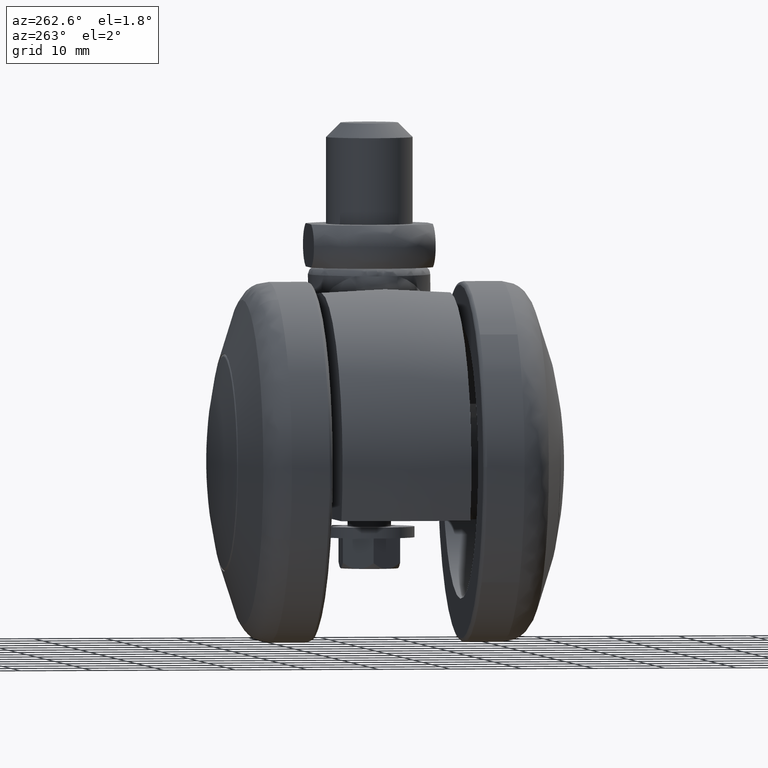
[diagram: clean part render]
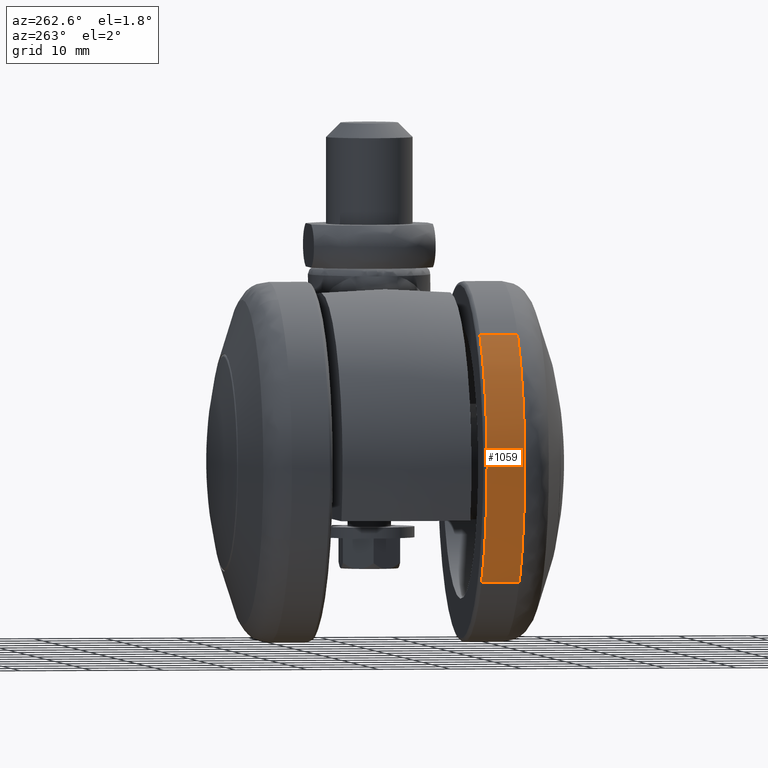
[diagram: same view with one face highlighted and labeled with its STEP entity id]
A machine part, auxiliary view. The second image highlights one B-rep face of the part: STEP entity #1059.
In plain terms, the highlighted face is a freeform B-spline surface patch.
Its self-contained STEP definition (entity closure, byte-faithful):
#842=CARTESIAN_POINT('',(-19.088892255726641,-16.249584999999911,-16.143549561643990));
#843=VERTEX_POINT('',#842);
#859=CARTESIAN_POINT('',(-19.088892241141721,-10.999999999812241,-16.143549578889889));
#860=VERTEX_POINT('',#859);
#861=CARTESIAN_POINT('',(-19.088892241141721,-10.999999999812241,-16.143549578889889));
#862=CARTESIAN_POINT('',(-19.088892255726641,-16.249584999999911,-16.143549561643990));
#863=QUASI_UNIFORM_CURVE('',1,(#861,#862),.UNSPECIFIED.,.F.,.U.);
#864=EDGE_CURVE('',#860,#843,#863,.T.);
#913=CARTESIAN_POINT('',(-17.208864003469280,-10.999999999854440,18.134359644335351));
#914=VERTEX_POINT('',#913);
#928=CARTESIAN_POINT('',(-17.208864008154691,-16.249584999999950,18.134359639889080));
#929=VERTEX_POINT('',#928);
#930=CARTESIAN_POINT('',(-17.208864003469280,-10.999999999854440,18.134359644335351));
#931=CARTESIAN_POINT('',(-17.208864008154691,-16.249584999999950,18.134359639889080));
#932=QUASI_UNIFORM_CURVE('',1,(#930,#931),.UNSPECIFIED.,.F.,.U.);
#933=EDGE_CURVE('',#914,#929,#932,.T.);
#998=CARTESIAN_POINT('',(-17.208864392343848,-10.868760374453981,18.134359275307190));
#999=CARTESIAN_POINT('',(-34.334108954376731,-10.868760374453979,1.883108989611296));
#1000=CARTESIAN_POINT('',(-19.088891073511626,-10.868760374453981,-16.143550959550634));
#1001=CARTESIAN_POINT('',(-17.208864392343848,-16.384105615752510,18.134359275307190));
#1002=CARTESIAN_POINT('',(-34.334108954376731,-16.384105615752510,1.883108989611296));
#1003=CARTESIAN_POINT('',(-19.088891073511626,-16.384105615752510,-16.143550959550634));
#1011=(BOUNDED_SURFACE()B_SPLINE_SURFACE(2,1,((#998,#1001),(#999,#1002),(#1000,#1003)),.UNSPECIFIED.,.F.,.F.,.U.)B_SPLINE_SURFACE_WITH_KNOTS((3,3),(2,2),(0.0,39.753588967719757),(0.0,5.515345241298528),.UNSPECIFIED.)GEOMETRIC_REPRESENTATION_ITEM()RATIONAL_B_SPLINE_SURFACE(((1.0,1.0),(0.718822509939086,0.718822509939086),(0.977505800795127,0.977505800795127)))REPRESENTATION_ITEM('')SURFACE());
#1012=CARTESIAN_POINT('',(-17.208864008154691,-16.249584999999957,18.134359639889077));
#1013=CARTESIAN_POINT('',(-25.000000000000004,-16.249584999999950,10.740848276577712));
#1014=CARTESIAN_POINT('',(-25.0,-16.249584999999950,1.789254E-015));
#1015=CARTESIAN_POINT('',(-24.999999999999996,-16.249584999999954,-9.153977757031967));
#1016=CARTESIAN_POINT('',(-19.088892255726641,-16.249584999999914,-16.143549561643990));
#1024=(BOUNDED_CURVE()B_SPLINE_CURVE(2,(#1012,#1013,#1014,#1015,#1016),.UNSPECIFIED.,.F.,.U.)B_SPLINE_CURVE_WITH_KNOTS((3,2,3),(0.621049520264628,0.750000000000000,0.862408078654733),.UNSPECIFIED.)CURVE()GEOMETRIC_REPRESENTATION_ITEM()RATIONAL_B_SPLINE_CURVE((0.853699661842961,0.848925115691072,1.0,0.868305744088719,0.855039474392251))REPRESENTATION_ITEM(''));
#1025=EDGE_CURVE('',#929,#843,#1024,.T.);
#1026=ORIENTED_EDGE('',*,*,#1025,.F.);
#1027=ORIENTED_EDGE('',*,*,#933,.F.);
#1028=CARTESIAN_POINT('',(-25.0,-10.999999999470010,3.546573E-015));
#1029=VERTEX_POINT('',#1028);
#1030=CARTESIAN_POINT('',(-17.208864003469277,-10.999999999854438,18.134359644335344));
#1031=CARTESIAN_POINT('',(-24.999999999999943,-10.999999999697710,10.740848284229289));
#1032=CARTESIAN_POINT('',(-25.0,-10.999999999470012,3.546573E-015));
#1040=(BOUNDED_CURVE()B_SPLINE_CURVE(2,(#1030,#1031,#1032),.UNSPECIFIED.,.F.,.U.)B_SPLINE_CURVE_WITH_KNOTS((3,3),(0.621049520186644,0.749999999999999),.UNSPECIFIED.)CURVE()GEOMETRIC_REPRESENTATION_ITEM()RATIONAL_B_SPLINE_CURVE((0.853699661848736,0.848925115599708,0.999999999999998))REPRESENTATION_ITEM(''));
#1041=EDGE_CURVE('',#914,#1029,#1040,.T.);
#1042=ORIENTED_EDGE('',*,*,#1041,.T.);
#1043=CARTESIAN_POINT('',(-25.0,-10.999999999470010,3.546573E-015));
#1044=CARTESIAN_POINT('',(-24.999999999999996,-10.999999999664070,-9.153977769839207));
#1045=CARTESIAN_POINT('',(-19.088892241141782,-10.999999999812246,-16.143549578889932));
#1053=(BOUNDED_CURVE()B_SPLINE_CURVE(2,(#1043,#1044,#1045),.UNSPECIFIED.,.F.,.U.)B_SPLINE_CURVE_WITH_KNOTS((3,3),(0.750000000000000,0.862408078791290),.UNSPECIFIED.)CURVE()GEOMETRIC_REPRESENTATION_ITEM()RATIONAL_B_SPLINE_CURVE((1.0,0.868305743928731,0.855039474360019))REPRESENTATION_ITEM(''));
#1054=EDGE_CURVE('',#1029,#860,#1053,.T.);
#1055=ORIENTED_EDGE('',*,*,#1054,.T.);
#1056=ORIENTED_EDGE('',*,*,#864,.T.);
#1057=EDGE_LOOP('',(#1026,#1027,#1042,#1055,#1056));
#1058=FACE_OUTER_BOUND('',#1057,.T.);
#1059=ADVANCED_FACE('',(#1058),#1011,.T.);